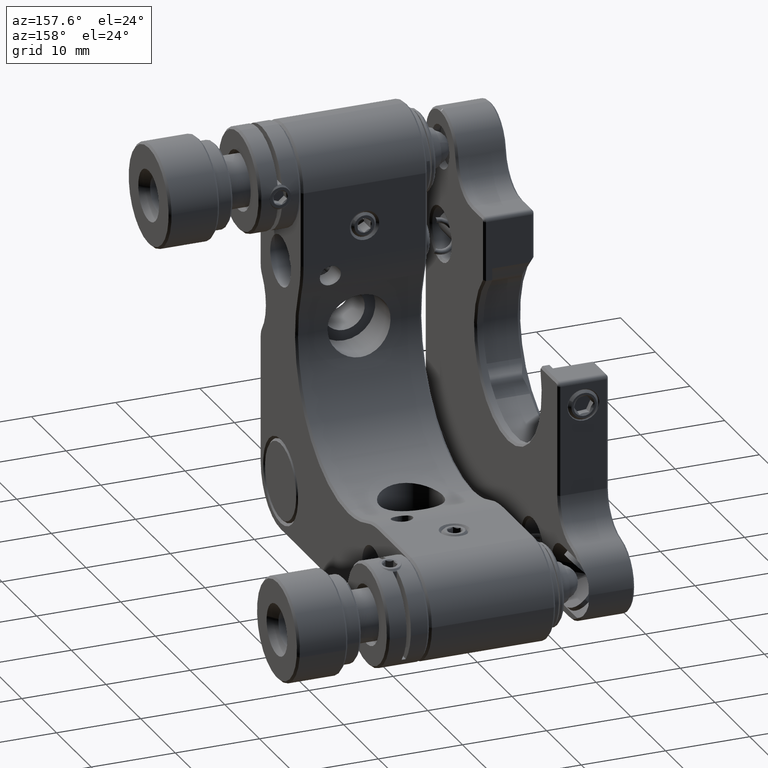
[diagram: clean part render]
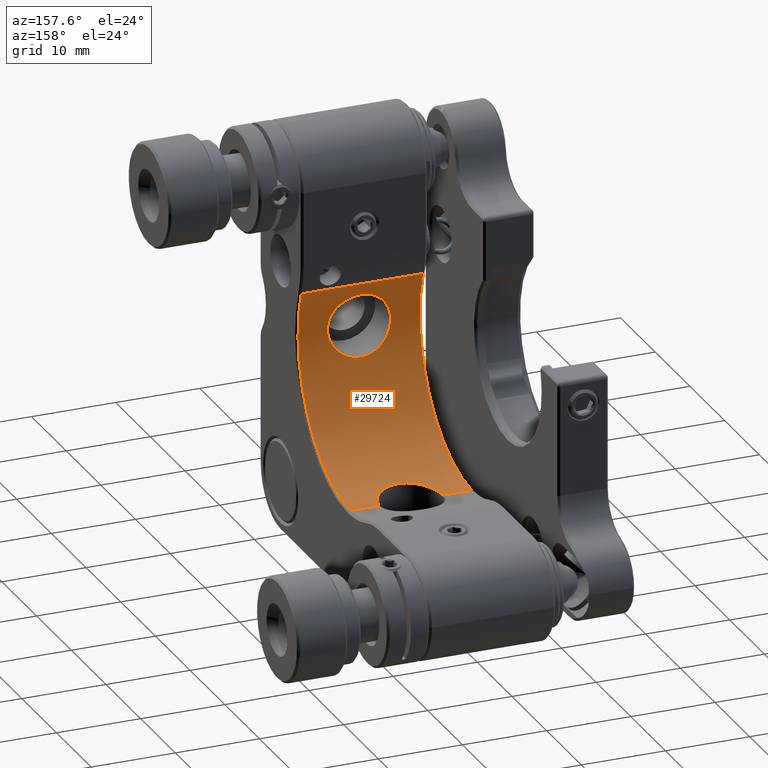
[diagram: same view with one face highlighted and labeled with its STEP entity id]
A machine part, auxiliary view. The second image highlights one B-rep face of the part: STEP entity #29724.
In plain terms, the highlighted cylindrical surface (partial cylindrical patch) has radius 15 mm, axis along (1, -0, -0).
Its self-contained STEP definition (entity closure, byte-faithful):
#107 = CARTESIAN_POINT ( 'NONE',  ( -2.480056605588062180, -13.83293896022668790, 3.723320718575310995 ) ) ;
#454 = CARTESIAN_POINT ( 'NONE',  ( 3.629022331705722859, -14.07014142793296685, -0.07601376338799938071 ) ) ;
#456 = ORIENTED_EDGE ( 'NONE', *, *, #15182, .F. ) ;
#529 = CARTESIAN_POINT ( 'NONE',  ( -1.663737419591871269, -13.71693523137524195, -2.469647403722255330 ) ) ;
#624 = DIRECTION ( 'NONE',  ( 1.000000000000000000, -0.000000000000000000, -0.000000000000000000 ) ) ;
#667 = CARTESIAN_POINT ( 'NONE',  ( 0.9770267345236250955, -13.65447921122237496, -2.729000789636455870 ) ) ;
#869 = CARTESIAN_POINT ( 'NONE',  ( 2.290868360933536074, -13.80185984602679738, 3.879073424858193953 ) ) ;
#1083 = CARTESIAN_POINT ( 'NONE',  ( 2.980886431233383593, -13.92584302432325316, -1.388274536575671014 ) ) ;
#1289 = CARTESIAN_POINT ( 'NONE',  ( 2.477411330805669998, -13.83248502083877796, -1.925722540327070353 ) ) ;
#1676 = CARTESIAN_POINT ( 'NONE',  ( -1.665040113074199857, -2.469106858142268379, -13.71706351571669558 ) ) ;
#1827 = CARTESIAN_POINT ( 'NONE',  ( -0.9739584912347556411, -13.65432882727769481, 4.529594718763301664 ) ) ;
#1841 = B_SPLINE_CURVE_WITH_KNOTS ( 'NONE', 3,
 ( #18742, #5713, #14915, #28139, #17888, #14703, #25347, #31766, #21101, #8490, #37540, #30911, #5079, #34550, #21525, #5510, #24508, #38173, #40953, #28568, #2318, #1676, #28355, #18534, #21309, #5302, #27716, #31556, #41162, #15334, #24930, #41374, #37960, #12131 ),
 .UNSPECIFIED., .F., .F.,
 ( 4, 2, 2, 2, 2, 2, 2, 2, 2, 2, 2, 2, 2, 2, 2, 2, 4 ),
 ( 2.168404344971008868E-19, 0.0007356909983733526297, 0.001471381996746705043, 0.002207072995120057564, 0.002942763993493410085, 0.003678454991866762606, 0.004414145990240115128, 0.005149836988613467649, 0.005885527986986819303, 0.006621218985360172692, 0.007356909983733524346, 0.008092600982106876867, 0.008828291980480230255, 0.009563982978853583644, 0.01029967397722693877, 0.01103536497560029216, 0.01177105597397364728 ),
 .UNSPECIFIED. ) ;
#2318 = CARTESIAN_POINT ( 'NONE',  ( -1.209780328684219475, -2.658043163883218263, -13.67222548851139408 ) ) ;
#3169 = CYLINDRICAL_SURFACE ( 'NONE', #31554, 14.99999999999999467 ) ;
#3639 = CARTESIAN_POINT ( 'NONE',  ( 0.2452523345077356476, -13.62368754827781103, -2.849999999999972999 ) ) ;
#3809 = CARTESIAN_POINT ( 'NONE',  ( -7.500000000000000000, 0.9000000000000050182, -14.09999999999998899 ) ) ;
#3849 = CARTESIAN_POINT ( 'NONE',  ( 3.254613230722227080, -13.98328466118857172, 2.778954409580041141 ) ) ;
#4470 = CARTESIAN_POINT ( 'NONE',  ( 3.367555256710381251, -14.00870252862085330, -0.7682632608926935891 ) ) ;
#4641 = ORIENTED_EDGE ( 'NONE', *, *, #31753, .T. ) ;
#4961 = VERTEX_POINT ( 'NONE', #33984 ) ;
#5079 = CARTESIAN_POINT ( 'NONE',  ( 1.664077287726261956, -2.469411076059406351, -13.71698780236794946 ) ) ;
#5302 = CARTESIAN_POINT ( 'NONE',  ( -2.825894157218515890, -1.577331343240957473, -13.89506640801443815 ) ) ;
#5510 = CARTESIAN_POINT ( 'NONE',  ( 0.4912571215039186479, -2.825882935686633957, -13.62997870679921064 ) ) ;
#5713 = CARTESIAN_POINT ( 'NONE',  ( 3.749999999999997335, 0.6511654887498204980, -14.09999999999999076 ) ) ;
#6494 = CARTESIAN_POINT ( 'NONE',  ( -2.824629782180450466, -13.89482378766906301, -1.578774416735785113 ) ) ;
#6754 = CARTESIAN_POINT ( 'NONE',  ( -7.500000000000000000, 0.9000000000000050182, -14.09999999999998899 ) ) ;
#6787 = VERTEX_POINT ( 'NONE', #31385 ) ;
#6909 = CARTESIAN_POINT ( 'NONE',  ( -2.288785167906273621, -13.80155722552831499, -2.080512832353812680 ) ) ;
#7034 = CARTESIAN_POINT ( 'NONE',  ( -7.249999999999992895, 0.9000000000000050182, -14.09999999999998899 ) ) ;
#7459 = CARTESIAN_POINT ( 'NONE',  ( 0.9771589653197617631, -13.65452205343516923, 4.528825284281224661 ) ) ;
#7651 = CARTESIAN_POINT ( 'NONE',  ( 2.289320987157429599, -13.80163045517103271, -2.080174667212662420 ) ) ;
#8414 = EDGE_CURVE ( 'NONE', #4961, #35653, #39135, .T. ) ;
#8490 = CARTESIAN_POINT ( 'NONE',  ( 2.478566332602308186, -1.924629766986997170, -13.83268705074660865 ) ) ;
#8645 = CARTESIAN_POINT ( 'NONE',  ( -1.993013034384345204E-17, -13.62368754827779860, 4.650000000000019895 ) ) ;
#8783 = ORIENTED_EDGE ( 'NONE', *, *, #15088, .T. ) ;
#8854 = CARTESIAN_POINT ( 'NONE',  ( -1.881326257767094168, -13.74364481021236628, 4.153154977943914972 ) ) ;
#8942 = EDGE_LOOP ( 'NONE', ( #36429, #4641 ) ) ;
#9236 = CARTESIAN_POINT ( 'NONE',  ( 3.749999999999996447, 0.9000000000000051292, -14.09999999999998899 ) ) ;
#9573 = VERTEX_POINT ( 'NONE', #17257 ) ;
#9912 = CARTESIAN_POINT ( 'NONE',  ( -3.749899213483981697, -14.09997480337295883, 1.147236961954606116 ) ) ;
#10126 = CARTESIAN_POINT ( 'NONE',  ( -3.369346174572877217, -14.00911437852056807, 2.564215264581796827 ) ) ;
#10268 = CARTESIAN_POINT ( 'NONE',  ( 3.630174259335759324, -14.07042122367338699, 1.871920487539914912 ) ) ;
#10676 = CARTESIAN_POINT ( 'NONE',  ( 4.592318675502459319E-16, -13.62368754827780748, -2.849999999999972999 ) ) ;
#10713 = DIRECTION ( 'NONE',  ( 1.000000000000000000, 0.000000000000000000, 0.000000000000000000 ) ) ;
#11325 = VERTEX_POINT ( 'NONE', #9236 ) ;
#12064 = CARTESIAN_POINT ( 'NONE',  ( -1.212675130442078864, -13.67247857891888607, 4.457001551143902063 ) ) ;
#12131 = CARTESIAN_POINT ( 'NONE',  ( -3.749999999999996447, 0.9000000000000053513, -14.09999999999998899 ) ) ;
#12354 = CARTESIAN_POINT ( 'NONE',  ( -7.500000000000000000, 0.9000000000000050182, 0.9000000000000050182 ) ) ;
#12917 = CARTESIAN_POINT ( 'NONE',  ( -3.369035550462378126, -14.00903929074459420, -0.7651899050108341704 ) ) ;
#13327 = CARTESIAN_POINT ( 'NONE',  ( -3.558016004703461466, -14.05287697810735104, -0.3098677904231438851 ) ) ;
#13669 = CARTESIAN_POINT ( 'NONE',  ( 1.882265921560206001, -13.74375396148663953, 4.152696007676670575 ) ) ;
#13827 = LINE ( 'NONE', #16618, #33942 ) ;
#14079 = CARTESIAN_POINT ( 'NONE',  ( 1.211533052884929074, -13.67239921527587221, -2.657310268745154858 ) ) ;
#14208 = LINE ( 'NONE', #6754, #25098 ) ;
#14243 = VERTEX_POINT ( 'NONE', #7034 ) ;
#14703 = CARTESIAN_POINT ( 'NONE',  ( 3.368344535341531554, -0.7664688474443046573, -14.00888417446411083 ) ) ;
#14915 = CARTESIAN_POINT ( 'NONE',  ( 3.725479754671075838, 0.4066822754345169044, -14.09381669249733982 ) ) ;
#15088 = EDGE_CURVE ( 'NONE', #6787, #4961, #13827, .T. ) ;
#15182 = EDGE_CURVE ( 'NONE', #11325, #35653, #30062, .T. ) ;
#15334 = CARTESIAN_POINT ( 'NONE',  ( -3.557475990201496518, -0.3111697861938461096, -14.05275169912578015 ) ) ;
#15567 = FACE_BOUND ( 'NONE', #8942, .T. ) ;
#15839 = CIRCLE ( 'NONE', #17889, 14.99999999999999467 ) ;
#15928 = B_SPLINE_CURVE_WITH_KNOTS ( 'NONE', 3,
 ( #10676, #3639, #36919, #667, #14079, #23698, #20068, #7651, #1289, #27315, #1083, #29683, #4470, #17486, #454, #27105, #39510, #30518, #33097, #10268, #36300, #26895, #3849, #16866, #29901, #30100, #869, #13669, #20286, #39927, #7459, #39718, #20491, #33514 ),
 .UNSPECIFIED., .F., .F.,
 ( 4, 2, 2, 2, 2, 2, 2, 2, 2, 2, 2, 2, 2, 2, 2, 2, 4 ),
 ( 0.01177096090889181816, 0.01250644591839297770, 0.01324193092789413898, 0.01397741593739529851, 0.01471290094689645805, 0.01544838595639761759, 0.01618387096589877713, 0.01691935597539993841, 0.01765484098490109621, 0.01839032599440225402, 0.01912581100390341529, 0.01986129601340457657, 0.02059678102290573437, 0.02133226603240689565, 0.02206775104190805692, 0.02280323605140921472, 0.02353872106091037600 ),
 .UNSPECIFIED. ) ;
#16116 = CARTESIAN_POINT ( 'NONE',  ( -2.979312874325445559, -13.92551301885366755, 3.190622610775672108 ) ) ;
#16192 = DIRECTION ( 'NONE',  ( 0.000000000000000000, 0.000000000000000000, -1.000000000000000000 ) ) ;
#16618 = CARTESIAN_POINT ( 'NONE',  ( -7.500000000000000000, -13.13999999999999524, 6.179999999999989946 ) ) ;
#16748 = VERTEX_POINT ( 'NONE', #41154 ) ;
#16866 = CARTESIAN_POINT ( 'NONE',  ( 2.981355647803477726, -13.92592784695340669, 3.187901976961157402 ) ) ;
#17257 = CARTESIAN_POINT ( 'NONE',  ( -3.749999999999996447, 0.9000000000000053513, -14.09999999999998899 ) ) ;
#17486 = CARTESIAN_POINT ( 'NONE',  ( 3.557306606717654862, -14.05270587466045384, -0.3120645281687732253 ) ) ;
#17888 = CARTESIAN_POINT ( 'NONE',  ( 3.556982288463666819, -0.3127408329166171397, -14.05263205657336911 ) ) ;
#17889 = AXIS2_PLACEMENT_3D ( 'NONE', #39339, #23944, #20533 ) ;
#18534 = CARTESIAN_POINT ( 'NONE',  ( -2.288057549280806846, -2.081055962258458347, -13.80144572283379389 ) ) ;
#18742 = CARTESIAN_POINT ( 'NONE',  ( 3.749999999999996447, 0.9000000000000051292, -14.09999999999998899 ) ) ;
#19316 = CARTESIAN_POINT ( 'NONE',  ( -2.980876983746287845, -13.92584081203052193, -1.388294196333224484 ) ) ;
#19485 = ORIENTED_EDGE ( 'NONE', *, *, #26361, .T. ) ;
#19820 = DIRECTION ( 'NONE',  ( 1.000000000000000000, -0.000000000000000000, -0.000000000000000000 ) ) ;
#19931 = CARTESIAN_POINT ( 'NONE',  ( -0.2453190416028169785, -13.62368754827781103, -2.849999999999973443 ) ) ;
#19986 = DIRECTION ( 'NONE',  ( 1.000000000000000000, -0.000000000000000000, -0.000000000000000000 ) ) ;
#20019 = EDGE_LOOP ( 'NONE', ( #29433, #19485, #8783, #40936, #456, #38090 ) ) ;
#20068 = CARTESIAN_POINT ( 'NONE',  ( 1.882435273515387308, -13.74378742051208135, -2.352517343591053578 ) ) ;
#20286 = CARTESIAN_POINT ( 'NONE',  ( 1.667273354059309209, -13.71734895099448259, 4.267853148229206361 ) ) ;
#20491 = CARTESIAN_POINT ( 'NONE',  ( 0.2487723519275952255, -13.62368754827780037, 4.650000000000019895 ) ) ;
#20533 = DIRECTION ( 'NONE',  ( 0.000000000000000000, 0.000000000000000000, -1.000000000000000000 ) ) ;
#21101 = CARTESIAN_POINT ( 'NONE',  ( 2.823125141408435734, -1.580279988550943315, -13.89455346518371748 ) ) ;
#21309 = CARTESIAN_POINT ( 'NONE',  ( -2.478555030130890735, -1.924820938505421575, -13.83266938701681958 ) ) ;
#21525 = CARTESIAN_POINT ( 'NONE',  ( 0.9758258009527294163, -2.729228735704618547, -13.65442144691485815 ) ) ;
#22518 = CARTESIAN_POINT ( 'NONE',  ( -3.253511779990938102, -13.98303967513418122, 2.780935470870354642 ) ) ;
#22720 = CARTESIAN_POINT ( 'NONE',  ( -0.9772732730665401046, -13.65453184424922206, -2.728785886819417694 ) ) ;
#23150 = CARTESIAN_POINT ( 'NONE',  ( -3.725451947770779704, -14.09380923959010445, 0.4061874831626103299 ) ) ;
#23698 = CARTESIAN_POINT ( 'NONE',  ( 1.663143443967403767, -13.71687561233084018, -2.469899489768301315 ) ) ;
#23944 = DIRECTION ( 'NONE',  ( -1.000000000000000000, -0.000000000000000000, -0.000000000000000000 ) ) ;
#24508 = CARTESIAN_POINT ( 'NONE',  ( 0.2472600652822182221, -2.849896660468967724, -13.62371423042748830 ) ) ;
#24930 = CARTESIAN_POINT ( 'NONE',  ( -3.628775678214615663, -0.07731859186027263686, -14.07008076199776347 ) ) ;
#25098 = VECTOR ( 'NONE', #19986, 1000.000000000000000 ) ;
#25347 = CARTESIAN_POINT ( 'NONE',  ( 3.253055067578485726, -0.9815025635421441574, -13.98294864233213985 ) ) ;
#25370 = DIRECTION ( 'NONE',  ( 1.000000000000000000, -0.000000000000000000, -0.000000000000000000 ) ) ;
#26361 = EDGE_CURVE ( 'NONE', #14243, #6787, #15839, .T. ) ;
#26895 = CARTESIAN_POINT ( 'NONE',  ( 3.369691515187086317, -14.00919126615554866, 2.563623520128309075 ) ) ;
#27105 = CARTESIAN_POINT ( 'NONE',  ( 3.725099860414812891, -14.09372202818095055, 0.4039788509758708290 ) ) ;
#27143 = CARTESIAN_POINT ( 'NONE',  ( 7.249999999999985789, 0.9000000000000050182, 0.9000000000000050182 ) ) ;
#27315 = CARTESIAN_POINT ( 'NONE',  ( 2.823337051782029317, -13.89458617519259676, -1.580129566968542010 ) ) ;
#27716 = CARTESIAN_POINT ( 'NONE',  ( -2.980327348909101115, -1.389030502006996182, -13.92572902686804071 ) ) ;
#28139 = CARTESIAN_POINT ( 'NONE',  ( 3.629585900314277858, -0.07399587887952473186, -14.07027833453699905 ) ) ;
#28229 = AXIS2_PLACEMENT_3D ( 'NONE', #27143, #10713, #29723 ) ;
#28287 = CARTESIAN_POINT ( 'NONE',  ( -0.2488400164453133390, -13.62368754827780037, 4.650000000000021672 ) ) ;
#28355 = CARTESIAN_POINT ( 'NONE',  ( -1.882940729771949817, -2.352143325117062922, -13.74386440747254845 ) ) ;
#28568 = CARTESIAN_POINT ( 'NONE',  ( -0.9755242956547434119, -2.729213720553383293, -13.65442446859862535 ) ) ;
#28923 = CARTESIAN_POINT ( 'NONE',  ( -3.556686434092974469, -14.05256554234626343, 2.113296213014332903 ) ) ;
#29349 = CARTESIAN_POINT ( 'NONE',  ( -3.725884902342166516, -14.09391620853252114, 1.391248592830393704 ) ) ;
#29433 = ORIENTED_EDGE ( 'NONE', *, *, #36895, .F. ) ;
#29683 = CARTESIAN_POINT ( 'NONE',  ( 3.251966929429852993, -13.98271569224073652, -0.9832406539118936362 ) ) ;
#29723 = DIRECTION ( 'NONE',  ( 0.000000000000000000, 0.000000000000000000, -1.000000000000000000 ) ) ;
#29724 = ADVANCED_FACE ( 'NONE', ( #31790, #15567 ), #3169, .F. ) ;
#29757 = CARTESIAN_POINT ( 'NONE',  ( -1.883405683388544860, -13.74392243488322762, -2.351888269979953261 ) ) ;
#29901 = CARTESIAN_POINT ( 'NONE',  ( 2.824913003665837419, -13.89489818764434048, 3.378220342597944459 ) ) ;
#30062 = LINE ( 'NONE', #3809, #33272 ) ;
#30100 = CARTESIAN_POINT ( 'NONE',  ( 2.480959184686742258, -13.83309327264858268, 3.722507939522071929 ) ) ;
#30518 = CARTESIAN_POINT ( 'NONE',  ( 3.750074386164521822, -14.10001859654032863, 1.146200354725959381 ) ) ;
#30911 = CARTESIAN_POINT ( 'NONE',  ( 1.880767044088646145, -2.353605467686938901, -13.74355435765856193 ) ) ;
#31385 = CARTESIAN_POINT ( 'NONE',  ( -7.249999999999992895, -13.13999999999999524, 6.179999999999989946 ) ) ;
#31418 = B_SPLINE_CURVE_WITH_KNOTS ( 'NONE', 3,
 ( #8645, #28287, #37678, #1827, #12064, #38109, #8854, #34905, #107, #36174, #16116, #22518, #10126, #28923, #35327, #29349, #9912, #39585, #23150, #42165, #13327, #12917, #35744, #19316, #6494, #32336, #6909, #29757, #529, #39369, #22720, #41948, #19931, #32958 ),
 .UNSPECIFIED., .F., .F.,
 ( 4, 2, 2, 2, 2, 2, 2, 2, 2, 2, 2, 2, 2, 2, 2, 2, 4 ),
 ( 1.935579689756006364E-20, 0.0007356850568057374425, 0.001471370113611474885, 0.002207055170417212761, 0.002942740227222951071, 0.003678425284028689814, 0.004414110340834428124, 0.005149795397640167735, 0.005885480454445906479, 0.006621165511251645222, 0.007356850568057383966, 0.008092535624863122709, 0.008828220681668861453, 0.009563905738474600196, 0.01029959079528033894, 0.01103527585208607768, 0.01177096090889181816 ),
 .UNSPECIFIED. ) ;
#31554 = AXIS2_PLACEMENT_3D ( 'NONE', #12354, #25370, #16192 ) ;
#31556 = CARTESIAN_POINT ( 'NONE',  ( -3.251771926041348237, -0.9836111824852012964, -13.98267149171991264 ) ) ;
#31753 = EDGE_CURVE ( 'NONE', #33525, #16748, #15928, .T. ) ;
#31766 = CARTESIAN_POINT ( 'NONE',  ( 2.980860019500517044, -1.388425815589639178, -13.92583284248999043 ) ) ;
#31790 = FACE_OUTER_BOUND ( 'NONE', #20019, .T. ) ;
#32051 = CARTESIAN_POINT ( 'NONE',  ( 4.592318675502459319E-16, -13.62368754827780748, -2.849999999999972999 ) ) ;
#32336 = CARTESIAN_POINT ( 'NONE',  ( -2.477089852389568136, -13.83242178457462934, -1.926107195177356068 ) ) ;
#32958 = CARTESIAN_POINT ( 'NONE',  ( 4.592318675502459319E-16, -13.62368754827780748, -2.849999999999972999 ) ) ;
#33097 = CARTESIAN_POINT ( 'NONE',  ( 3.725916652760755010, -14.09392548215398477, 1.390244514425019506 ) ) ;
#33272 = VECTOR ( 'NONE', #624, 1000.000000000000000 ) ;
#33514 = CARTESIAN_POINT ( 'NONE',  ( -1.993013034384345204E-17, -13.62368754827779860, 4.650000000000019895 ) ) ;
#33525 = VERTEX_POINT ( 'NONE', #32051 ) ;
#33942 = VECTOR ( 'NONE', #19820, 1000.000000000000000 ) ;
#33984 = CARTESIAN_POINT ( 'NONE',  ( 7.249999999999985789, -13.13999999999999524, 6.179999999999989946 ) ) ;
#34550 = CARTESIAN_POINT ( 'NONE',  ( 1.213235604028237269, -2.656704034371772050, -13.67254678585485905 ) ) ;
#34905 = CARTESIAN_POINT ( 'NONE',  ( -2.288220754822109626, -13.80145907936672955, 3.881015192159634974 ) ) ;
#35327 = CARTESIAN_POINT ( 'NONE',  ( -3.629225223033709202, -14.07018973435196330, 1.875842080438773429 ) ) ;
#35653 = VERTEX_POINT ( 'NONE', #38844 ) ;
#35744 = CARTESIAN_POINT ( 'NONE',  ( -3.252029150407181657, -13.98272897645251689, -0.9831421417680230590 ) ) ;
#36174 = CARTESIAN_POINT ( 'NONE',  ( -2.824423455711515984, -13.89480238110728472, 3.378800675666396636 ) ) ;
#36300 = CARTESIAN_POINT ( 'NONE',  ( 3.557423378618257637, -14.05273969538775525, 2.111281564917169451 ) ) ;
#36429 = ORIENTED_EDGE ( 'NONE', *, *, #39673, .T. ) ;
#36895 = EDGE_CURVE ( 'NONE', #14243, #9573, #14208, .T. ) ;
#36919 = CARTESIAN_POINT ( 'NONE',  ( 0.4897193741165916658, -13.62990395478633410, -2.826178056101287250 ) ) ;
#37540 = CARTESIAN_POINT ( 'NONE',  ( 2.290391071048885507, -2.079486861047022295, -13.80177849139047730 ) ) ;
#37678 = CARTESIAN_POINT ( 'NONE',  ( -0.4933150887869641177, -13.63008094425847005, 4.625478920662126292 ) ) ;
#37960 = CARTESIAN_POINT ( 'NONE',  ( -3.749999999999995559, 0.6546765425810661121, -14.09999999999999076 ) ) ;
#38090 = ORIENTED_EDGE ( 'NONE', *, *, #39212, .T. ) ;
#38109 = CARTESIAN_POINT ( 'NONE',  ( -1.666324954216467535, -13.71722237000250288, 4.268412408507652245 ) ) ;
#38173 = CARTESIAN_POINT ( 'NONE',  ( -0.2441155282048518838, -2.850102680323424842, -13.62366103633478254 ) ) ;
#38844 = CARTESIAN_POINT ( 'NONE',  ( 7.249999999999985789, 0.9000000000000050182, -14.09999999999998899 ) ) ;
#39135 = CIRCLE ( 'NONE', #28229, 14.99999999999999467 ) ;
#39212 = EDGE_CURVE ( 'NONE', #11325, #9573, #1841, .T. ) ;
#39339 = CARTESIAN_POINT ( 'NONE',  ( -7.249999999999992895, 0.9000000000000050182, 0.9000000000000050182 ) ) ;
#39369 = CARTESIAN_POINT ( 'NONE',  ( -1.211085168831825820, -13.67235398427559900, -2.657501727420232829 ) ) ;
#39510 = CARTESIAN_POINT ( 'NONE',  ( 3.749925273077161947, -14.09998131827007661, 0.6515388103313760615 ) ) ;
#39585 = CARTESIAN_POINT ( 'NONE',  ( -3.750100159458882310, -14.10002503986274114, 0.6558299349413257984 ) ) ;
#39673 = EDGE_CURVE ( 'NONE', #16748, #33525, #31418, .T. ) ;
#39718 = CARTESIAN_POINT ( 'NONE',  ( 0.4939331977955306319, -13.63008061107406199, 4.625485550026866122 ) ) ;
#39927 = CARTESIAN_POINT ( 'NONE',  ( 1.216022788424112377, -13.67277603409693221, 4.455773311563432593 ) ) ;
#40936 = ORIENTED_EDGE ( 'NONE', *, *, #8414, .T. ) ;
#40953 = CARTESIAN_POINT ( 'NONE',  ( -0.4937603723813226986, -2.825458438304133679, -13.63008682926788140 ) ) ;
#41154 = CARTESIAN_POINT ( 'NONE',  ( -1.993013034384345204E-17, -13.62368754827779860, 4.650000000000019895 ) ) ;
#41162 = CARTESIAN_POINT ( 'NONE',  ( -3.369571490954315518, -0.7638977249809741910, -14.00916362468065834 ) ) ;
#41374 = CARTESIAN_POINT ( 'NONE',  ( -3.725431671611267870, 0.4057091818034958552, -14.09380359474465472 ) ) ;
#41948 = CARTESIAN_POINT ( 'NONE',  ( -0.4943027514603370309, -13.63009529786765484, -2.825428143519709501 ) ) ;
#42165 = CARTESIAN_POINT ( 'NONE',  ( -3.629197176155646520, -14.07018354735454224, -0.07558745047188610011 ) ) ;